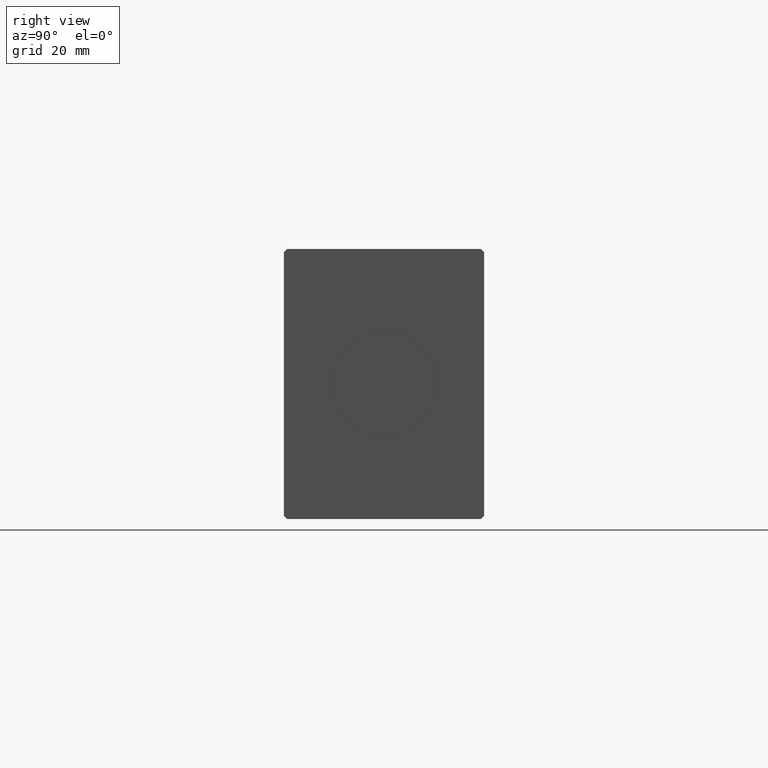
[diagram: clean part render]
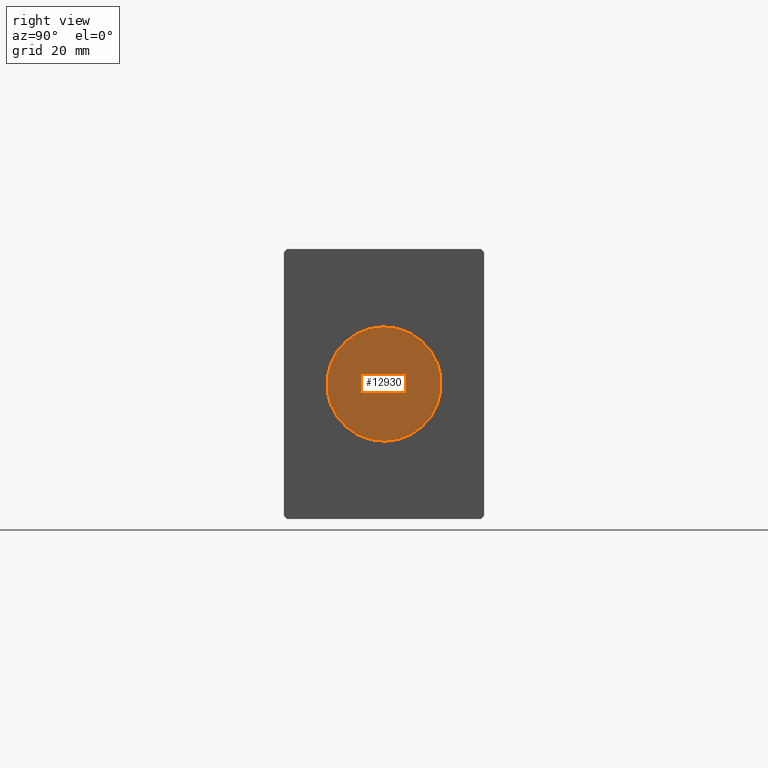
[diagram: same view with one face highlighted and labeled with its STEP entity id]
A machine part, right view. The second image highlights one B-rep face of the part: STEP entity #12930.
In plain terms, the highlighted planar face has unit normal (1, 0, 0).
Its self-contained STEP definition (entity closure, byte-faithful):
#326 = VERTEX_POINT ( 'NONE', #18066 ) ;
#391 = ORIENTED_EDGE ( 'NONE', *, *, #37205, .T. ) ;
#2284 = CARTESIAN_POINT ( 'NONE',  ( 190.8000000000000114, 0.000000000000000000, 0.000000000000000000 ) ) ;
#3108 = DIRECTION ( 'NONE',  ( 1.000000000000000000, 0.000000000000000000, 0.000000000000000000 ) ) ;
#4785 = AXIS2_PLACEMENT_3D ( 'NONE', #39307, #8635, #33244 ) ;
#5365 = CIRCLE ( 'NONE', #25984, 18.00000000000000000 ) ;
#7070 = VERTEX_POINT ( 'NONE', #30674 ) ;
#8635 = DIRECTION ( 'NONE',  ( 1.000000000000000000, 0.000000000000000000, 0.000000000000000000 ) ) ;
#12930 = ADVANCED_FACE ( 'NONE', ( #32736 ), #26277, .T. ) ;
#17604 = DIRECTION ( 'NONE',  ( 0.000000000000000000, 0.000000000000000000, -1.000000000000000000 ) ) ;
#18066 = CARTESIAN_POINT ( 'NONE',  ( 190.8000000000000114, 0.000000000000000000, -18.00000000000000000 ) ) ;
#23542 = EDGE_CURVE ( 'NONE', #7070, #326, #28597, .T. ) ;
#23644 = DIRECTION ( 'NONE',  ( 1.000000000000000000, 0.000000000000000000, 0.000000000000000000 ) ) ;
#25984 = AXIS2_PLACEMENT_3D ( 'NONE', #39844, #3108, #29954 ) ;
#26277 = PLANE ( 'NONE',  #31019 ) ;
#26877 = ORIENTED_EDGE ( 'NONE', *, *, #23542, .T. ) ;
#28597 = CIRCLE ( 'NONE', #4785, 18.00000000000000000 ) ;
#29259 = EDGE_LOOP ( 'NONE', ( #391, #26877 ) ) ;
#29954 = DIRECTION ( 'NONE',  ( 0.000000000000000000, 0.000000000000000000, -1.000000000000000000 ) ) ;
#30674 = CARTESIAN_POINT ( 'NONE',  ( 190.8000000000000114, 2.204364238465235428E-15, 18.00000000000000000 ) ) ;
#31019 = AXIS2_PLACEMENT_3D ( 'NONE', #2284, #23644, #17604 ) ;
#32736 = FACE_OUTER_BOUND ( 'NONE', #29259, .T. ) ;
#33244 = DIRECTION ( 'NONE',  ( 0.000000000000000000, 0.000000000000000000, -1.000000000000000000 ) ) ;
#37205 = EDGE_CURVE ( 'NONE', #326, #7070, #5365, .T. ) ;
#39307 = CARTESIAN_POINT ( 'NONE',  ( 190.8000000000000114, 0.000000000000000000, 0.000000000000000000 ) ) ;
#39844 = CARTESIAN_POINT ( 'NONE',  ( 190.8000000000000114, 0.000000000000000000, 0.000000000000000000 ) ) ;